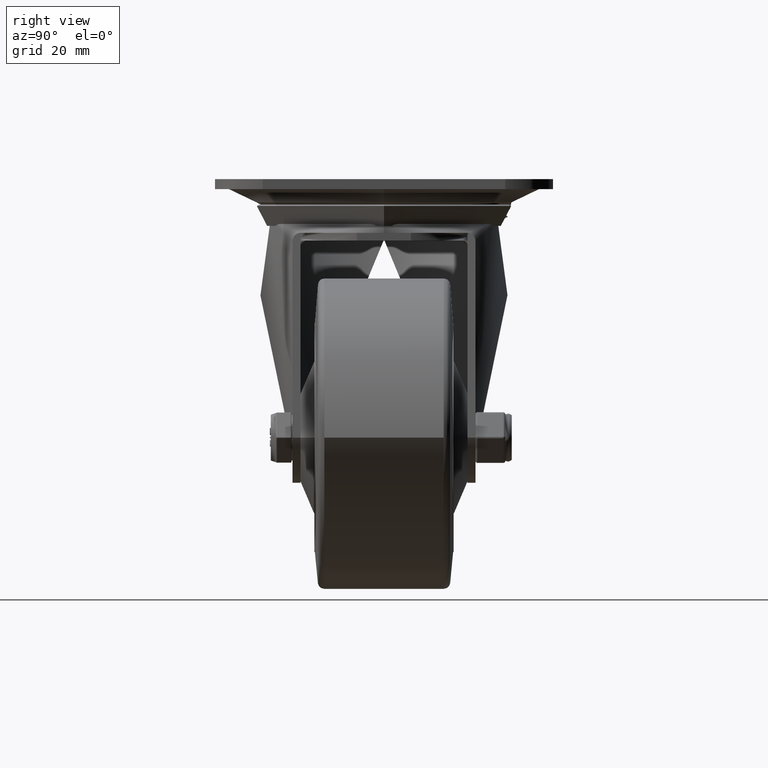
[diagram: clean part render]
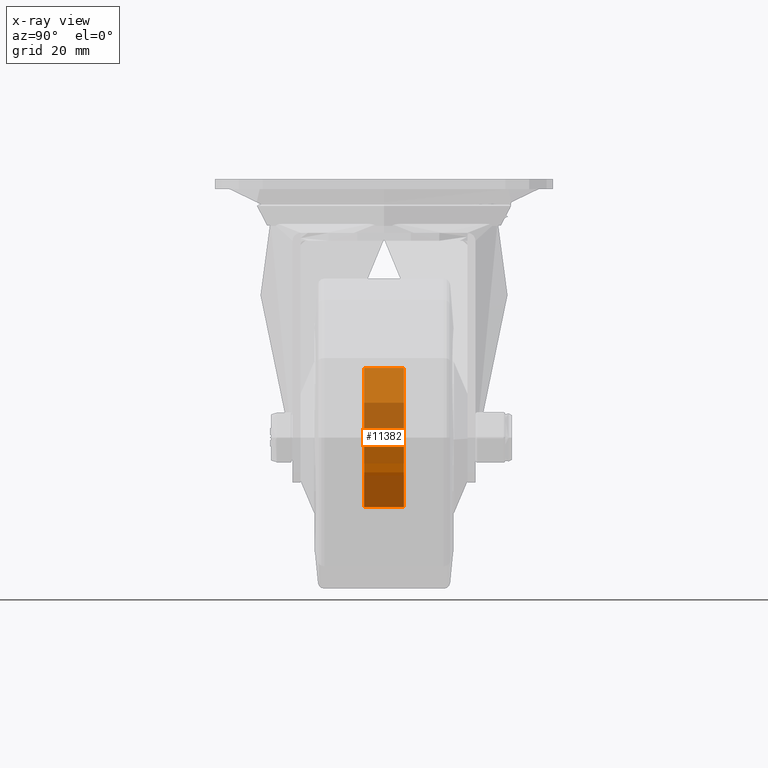
[diagram: x-ray — body ghosted, one internal face saturated and labeled with its STEP entity id]
A machine part, right view, then the same camera in x-ray: the body is ghosted and one INTERNAL B-rep face — a face not visible from any outside direction — is saturated and labeled: STEP entity #11382.
In plain terms, the highlighted cylindrical surface (bore or boss wall) has radius 17.5 mm, axis along (-0, 1, -0).
Its self-contained STEP definition (entity closure, byte-faithful):
#1518=FACE_OUTER_BOUND('',#2236,.T.);
#2236=EDGE_LOOP('',(#7902,#7903,#7904,#7905,#7906,#7907));
#3063=LINE('',#16407,#3796);
#3796=VECTOR('',#13543,17.5);
#4553=CIRCLE('',#12334,17.5);
#4554=CIRCLE('',#12335,17.5);
#4556=CIRCLE('',#12338,17.5);
#4557=CIRCLE('',#12339,17.5);
#5014=VERTEX_POINT('',#16396);
#5015=VERTEX_POINT('',#16397);
#5017=VERTEX_POINT('',#16404);
#5018=VERTEX_POINT('',#16405);
#6148=EDGE_CURVE('',#5014,#5015,#4553,.T.);
#6149=EDGE_CURVE('',#5015,#5014,#4554,.T.);
#6152=EDGE_CURVE('',#5017,#5018,#4556,.T.);
#6153=EDGE_CURVE('',#5017,#5015,#3063,.T.);
#6154=EDGE_CURVE('',#5018,#5017,#4557,.T.);
#7902=ORIENTED_EDGE('',*,*,#6152,.F.);
#7903=ORIENTED_EDGE('',*,*,#6153,.T.);
#7904=ORIENTED_EDGE('',*,*,#6148,.F.);
#7905=ORIENTED_EDGE('',*,*,#6149,.F.);
#7906=ORIENTED_EDGE('',*,*,#6153,.F.);
#7907=ORIENTED_EDGE('',*,*,#6154,.F.);
#11176=CYLINDRICAL_SURFACE('',#12337,17.5);
#11382=ADVANCED_FACE('',(#1518),#11176,.T.);
#12334=AXIS2_PLACEMENT_3D('',#16398,#13532,#13533);
#12335=AXIS2_PLACEMENT_3D('',#16399,#13534,#13535);
#12337=AXIS2_PLACEMENT_3D('',#16403,#13539,#13540);
#12338=AXIS2_PLACEMENT_3D('',#16406,#13541,#13542);
#12339=AXIS2_PLACEMENT_3D('',#16408,#13544,#13545);
#13532=DIRECTION('center_axis',(-1.,-4.33680868994202E-16,0.));
#13533=DIRECTION('ref_axis',(4.33680868994202E-16,-1.,0.));
#13534=DIRECTION('center_axis',(-1.,-4.33680868994202E-16,0.));
#13535=DIRECTION('ref_axis',(4.33680868994202E-16,-1.,0.));
#13539=DIRECTION('center_axis',(1.,0.,0.));
#13540=DIRECTION('ref_axis',(0.,1.,0.));
#13541=DIRECTION('center_axis',(1.,0.,0.));
#13542=DIRECTION('ref_axis',(0.,-1.,0.));
#13543=DIRECTION('',(-1.,0.,0.));
#13544=DIRECTION('center_axis',(1.,0.,0.));
#13545=DIRECTION('ref_axis',(0.,-1.,0.));
#16396=CARTESIAN_POINT('',(-5.,17.5,-2.14313189850787E-15));
#16397=CARTESIAN_POINT('',(-5.,-17.5,-2.14313189850787E-15));
#16398=CARTESIAN_POINT('Origin',(-4.99999999999999,-2.16840434497101E-15,
0.));
#16399=CARTESIAN_POINT('Origin',(-4.99999999999999,-2.16840434497101E-15,
0.));
#16403=CARTESIAN_POINT('Origin',(4.33680868994202E-16,0.,0.));
#16404=CARTESIAN_POINT('',(5.,-17.5,2.14313189850787E-15));
#16405=CARTESIAN_POINT('',(5.,17.5,-2.14313189850787E-15));
#16406=CARTESIAN_POINT('Origin',(5.,0.,0.));
#16407=CARTESIAN_POINT('',(4.33680868994202E-16,-17.5,-2.14313189850787E-15));
#16408=CARTESIAN_POINT('Origin',(5.,0.,0.));